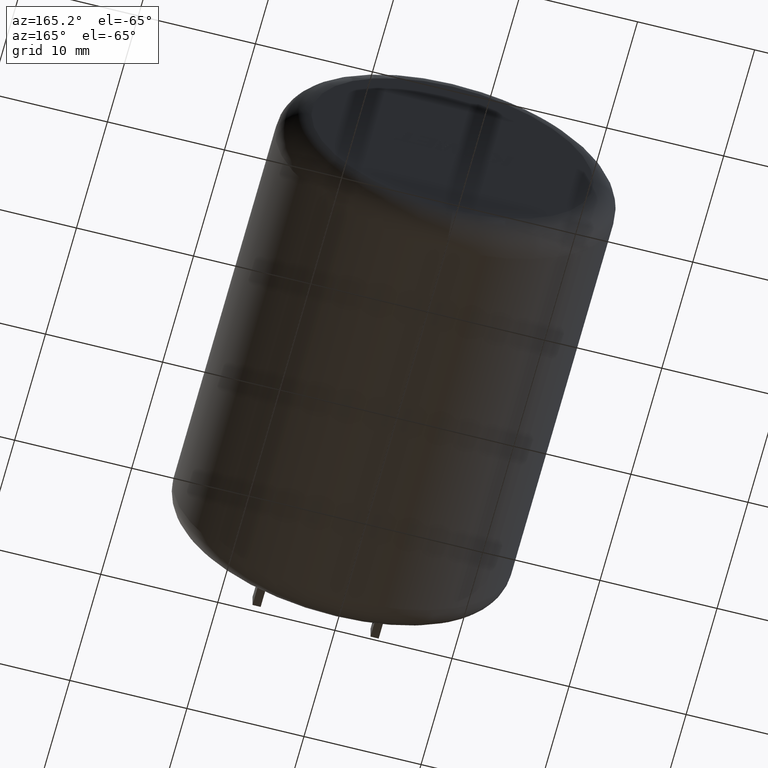
[diagram: clean part render]
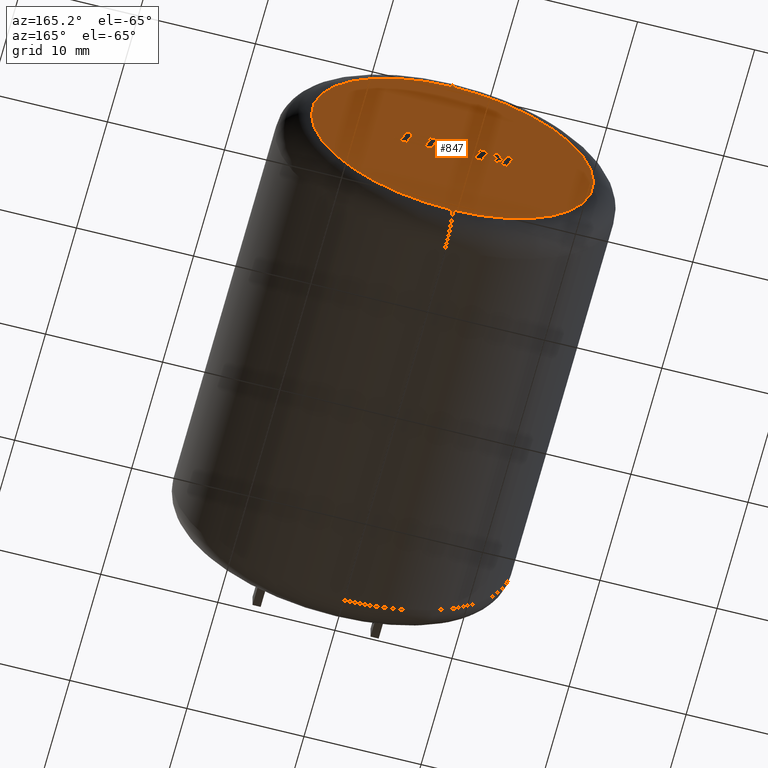
[diagram: same view with one face highlighted and labeled with its STEP entity id]
A machine part, auxiliary view. The second image highlights one B-rep face of the part: STEP entity #847.
In plain terms, the highlighted planar face has unit normal (0, 1, 0).
Its self-contained STEP definition (entity closure, byte-faithful):
#6 = EDGE_CURVE ( 'NONE', #2717, #40, #2582, .T. ) ;
#7 = VERTEX_POINT ( 'NONE', #1355 ) ;
#9 = CARTESIAN_POINT ( 'NONE',  ( 0.9844525863630282400, 38.00000000000000000, 1.053028994543904600 ) ) ;
#12 = FACE_OUTER_BOUND ( 'NONE', #566, .T. ) ;
#18 = CARTESIAN_POINT ( 'NONE',  ( -0.8156049229187412000, 38.00000000000000000, -0.9631222229663523000 ) ) ;
#22 = CARTESIAN_POINT ( 'NONE',  ( -2.823838918333584600, 38.00000000000000000, -0.9631222229663523000 ) ) ;
#40 = VERTEX_POINT ( 'NONE', #1281 ) ;
#41 = LINE ( 'NONE', #2018, #2085 ) ;
#43 = VECTOR ( 'NONE', #627, 1000.000000000000000 ) ;
#44 = DIRECTION ( 'NONE',  ( -0.7059037656364859400, -0.0000000000000000000, 0.7083077534943613700 ) ) ;
#69 = DIRECTION ( 'NONE',  ( -1.000000000000000000, 0.0000000000000000000, 1.455827704943586500E-016 ) ) ;
#74 = ORIENTED_EDGE ( 'NONE', *, *, #1971, .F. ) ;
#78 = EDGE_CURVE ( 'NONE', #1224, #7, #1349, .T. ) ;
#89 = VERTEX_POINT ( 'NONE', #838 ) ;
#99 = CARTESIAN_POINT ( 'NONE',  ( -3.086335984546776600, 38.00000000000000000, 1.053028994543905700 ) ) ;
#109 = LINE ( 'NONE', #2426, #2393 ) ;
#114 = ORIENTED_EDGE ( 'NONE', *, *, #655, .T. ) ;
#115 = VERTEX_POINT ( 'NONE', #1090 ) ;
#123 = DIRECTION ( 'NONE',  ( 0.2729786930695173900, 0.0000000000000000000, -0.9620200793798735500 ) ) ;
#135 = CARTESIAN_POINT ( 'NONE',  ( -0.3989456066037058200, 38.00000000000000000, -0.7418974402618798700 ) ) ;
#137 = DIRECTION ( 'NONE',  ( 1.000000000000000000, -0.0000000000000000000, 1.096870650732911000E-013 ) ) ;
#142 = VECTOR ( 'NONE', #1192, 1000.000000000000000 ) ;
#153 = CARTESIAN_POINT ( 'NONE',  ( 4.931683720037595400, 38.00000000000000000, -0.5737970821254480000 ) ) ;
#164 = CARTESIAN_POINT ( 'NONE',  ( -4.677904531710408900, 38.00000000000000000, 1.053028994543905300 ) ) ;
#198 = DIRECTION ( 'NONE',  ( -0.05596501978067570900, 0.0000000000000000000, 0.9984327301130249100 ) ) ;
#204 = DIRECTION ( 'NONE',  ( 0.0000000000000000000, 1.000000000000000000, 0.0000000000000000000 ) ) ;
#205 = VECTOR ( 'NONE', #929, 999.9999999999998900 ) ;
#210 = DIRECTION ( 'NONE',  ( 0.2740217765954067200, 0.0000000000000000000, -0.9617234872620595800 ) ) ;
#215 = EDGE_CURVE ( 'NONE', #1066, #1154, #2363, .T. ) ;
#226 = CARTESIAN_POINT ( 'NONE',  ( 2.859214151411832100, 38.00000000000000000, 0.6693814386009964100 ) ) ;
#228 = CARTESIAN_POINT ( 'NONE',  ( 1.564110927417840000, 38.00000000000000000, -0.9631222229663527500 ) ) ;
#238 = VERTEX_POINT ( 'NONE', #2161 ) ;
#241 = VECTOR ( 'NONE', #698, 1000.000000000000000 ) ;
#242 = CARTESIAN_POINT ( 'NONE',  ( -1.125700924485933100, 38.00000000000000000, -0.5793581909814401500 ) ) ;
#246 = EDGE_CURVE ( 'NONE', #1429, #2136, #908, .T. ) ;
#248 = LINE ( 'NONE', #1447, #749 ) ;
#249 = VECTOR ( 'NONE', #2116, 1000.000000000000100 ) ;
#273 = CARTESIAN_POINT ( 'NONE',  ( 3.912071732558238600, 38.00000000000000000, 1.053028994543904000 ) ) ;
#275 = CARTESIAN_POINT ( 'NONE',  ( 0.9900434363040663300, 38.00000000000000000, -0.7505411885221796600 ) ) ;
#283 = ORIENTED_EDGE ( 'NONE', *, *, #710, .F. ) ;
#290 = VERTEX_POINT ( 'NONE', #9 ) ;
#291 = LINE ( 'NONE', #1238, #2020 ) ;
#292 = EDGE_CURVE ( 'NONE', #1052, #611, #654, .T. ) ;
#302 = VERTEX_POINT ( 'NONE', #880 ) ;
#305 = VERTEX_POINT ( 'NONE', #228 ) ;
#333 = ORIENTED_EDGE ( 'NONE', *, *, #2303, .F. ) ;
#351 = CARTESIAN_POINT ( 'NONE',  ( -0.03453285888950724500, 38.00000000000000000, 0.4772421111879622800 ) ) ;
#357 = EDGE_CURVE ( 'NONE', #909, #1052, #1271, .T. ) ;
#360 = CARTESIAN_POINT ( 'NONE',  ( -0.8156049229187412000, 38.00000000000000000, -0.9631222229663523000 ) ) ;
#363 = EDGE_LOOP ( 'NONE', ( #969, #873, #1779, #2181, #882, #1700, #693, #1787, #2358, #1908, #1328, #2096, #2616, #1886, #1265, #2760, #1308, #74, #1714, #2482, #679, #2531, #1958 ) ) ;
#365 = DIRECTION ( 'NONE',  ( 0.3725077383644269700, -0.0000000000000000000, 0.9280290862136917300 ) ) ;
#369 = VERTEX_POINT ( 'NONE', #469 ) ;
#372 = EDGE_CURVE ( 'NONE', #933, #2472, #1267, .T. ) ;
#396 = EDGE_CURVE ( 'NONE', #7, #2673, #871, .T. ) ;
#412 = LINE ( 'NONE', #515, #1612 ) ;
#413 = CARTESIAN_POINT ( 'NONE',  ( 2.053187690916773900, 38.00000000000000000, 0.1683628157980141300 ) ) ;
#426 = EDGE_CURVE ( 'NONE', #534, #1007, #1713, .T. ) ;
#427 = DIRECTION ( 'NONE',  ( 0.0000000000000000000, 0.0000000000000000000, 1.000000000000000000 ) ) ;
#429 = LINE ( 'NONE', #135, #1079 ) ;
#437 = CARTESIAN_POINT ( 'NONE',  ( 0.04300255174971300700, 38.00000000000000000, -0.9631222229663527500 ) ) ;
#444 = ORIENTED_EDGE ( 'NONE', *, *, #2693, .F. ) ;
#446 = VECTOR ( 'NONE', #1956, 999.9999999999998900 ) ;
#447 = CARTESIAN_POINT ( 'NONE',  ( -1.284868498917413500, 38.00000000000000000, 0.6694550024109757700 ) ) ;
#452 = CARTESIAN_POINT ( 'NONE',  ( 1.227090569557494300, 38.00000000000000000, 1.053028994543904900 ) ) ;
#454 = LINE ( 'NONE', #1371, #2696 ) ;
#460 = CARTESIAN_POINT ( 'NONE',  ( 0.03793149982259607500, 38.00000000000000000, 1.053028994543905100 ) ) ;
#469 = CARTESIAN_POINT ( 'NONE',  ( 0.03793149982259607500, 38.00000000000000000, 1.053028994543905100 ) ) ;
#476 = EDGE_CURVE ( 'NONE', #2038, #2066, #2073, .T. ) ;
#480 = EDGE_CURVE ( 'NONE', #2673, #1429, #996, .T. ) ;
#497 = EDGE_CURVE ( 'NONE', #2612, #994, #1545, .T. ) ;
#498 = DIRECTION ( 'NONE',  ( -0.2762033010252001900, -0.0000000000000000000, 0.9610992334315862100 ) ) ;
#505 = EDGE_CURVE ( 'NONE', #611, #2400, #2565, .T. ) ;
#508 = EDGE_CURVE ( 'NONE', #994, #974, #2277, .T. ) ;
#515 = CARTESIAN_POINT ( 'NONE',  ( 0.9844525863630282400, 38.00000000000000000, 1.053028994543904600 ) ) ;
#529 = VECTOR ( 'NONE', #2134, 1000.000000000000000 ) ;
#534 = VERTEX_POINT ( 'NONE', #759 ) ;
#541 = CARTESIAN_POINT ( 'NONE',  ( -0.03453285888950724500, 38.00000000000000000, 0.4772421111879622800 ) ) ;
#548 = ORIENTED_EDGE ( 'NONE', *, *, #1318, .F. ) ;
#553 = VECTOR ( 'NONE', #1252, 1000.000000000000000 ) ;
#558 = LINE ( 'NONE', #779, #1106 ) ;
#566 = EDGE_LOOP ( 'NONE', ( #114, #1458 ) ) ;
#568 = AXIS2_PLACEMENT_3D ( 'NONE', #2285, #2530, #1043 ) ;
#572 = CARTESIAN_POINT ( 'NONE',  ( -4.671798733445354100, 38.00000000000000000, -0.9631222229663523000 ) ) ;
#576 = VECTOR ( 'NONE', #895, 1000.000000000000000 ) ;
#582 = EDGE_CURVE ( 'NONE', #1556, #238, #1293, .T. ) ;
#583 = DIRECTION ( 'NONE',  ( 0.05375259206908298400, 0.0000000000000000000, -0.9985542843760947300 ) ) ;
#584 = ORIENTED_EDGE ( 'NONE', *, *, #215, .F. ) ;
#587 = ORIENTED_EDGE ( 'NONE', *, *, #971, .F. ) ;
#594 = CARTESIAN_POINT ( 'NONE',  ( 2.159524185522648100, 38.00000000000000000, -0.2042869498019199100 ) ) ;
#597 = DIRECTION ( 'NONE',  ( -1.000000000000000000, 0.0000000000000000000, 1.448785531673512200E-016 ) ) ;
#606 = CARTESIAN_POINT ( 'NONE',  ( 3.303711244630005400, 38.00000000000000000, -0.9631222229663528600 ) ) ;
#611 = VERTEX_POINT ( 'NONE', #447 ) ;
#614 = VECTOR ( 'NONE', #1503, 1000.000000000000000 ) ;
#616 = DIRECTION ( 'NONE',  ( 0.9999999968487352000, 0.0000000000000000000, 7.938847109754407800E-005 ) ) ;
#625 = VECTOR ( 'NONE', #2172, 1000.000000000000000 ) ;
#627 = DIRECTION ( 'NONE',  ( 1.000000000000000000, 0.0000000000000000000, -2.506541263247940100E-016 ) ) ;
#632 = CIRCLE ( 'NONE', #891, 12.04900000000000100 ) ;
#635 = CARTESIAN_POINT ( 'NONE',  ( -1.016703871901081000, 38.00000000000000000, -0.9631222229663523000 ) ) ;
#641 = DIRECTION ( 'NONE',  ( -1.000000000000000000, 0.0000000000000000000, 0.0000000000000000000 ) ) ;
#642 = CARTESIAN_POINT ( 'NONE',  ( 0.0000000000000000000, 38.00000000000000000, 0.0000000000000000000 ) ) ;
#643 = VERTEX_POINT ( 'NONE', #1443 ) ;
#645 = ORIENTED_EDGE ( 'NONE', *, *, #1872, .F. ) ;
#648 = CIRCLE ( 'NONE', #2614, 12.04900000000000100 ) ;
#654 = LINE ( 'NONE', #18, #249 ) ;
#655 = EDGE_CURVE ( 'NONE', #2039, #115, #648, .T. ) ;
#668 = DIRECTION ( 'NONE',  ( -1.000000000000000000, 0.0000000000000000000, 5.050979426444720200E-016 ) ) ;
#675 = DIRECTION ( 'NONE',  ( 0.2755520632520542200, -0.0000000000000000000, -0.9612861490927329100 ) ) ;
#679 = ORIENTED_EDGE ( 'NONE', *, *, #357, .F. ) ;
#693 = ORIENTED_EDGE ( 'NONE', *, *, #2672, .F. ) ;
#695 = VECTOR ( 'NONE', #137, 1000.000000000000000 ) ;
#698 = DIRECTION ( 'NONE',  ( -1.000000000000000000, 0.0000000000000000000, 0.0000000000000000000 ) ) ;
#703 = CARTESIAN_POINT ( 'NONE',  ( -3.765038890539953000, 38.00000000000000000, -0.04168639734653927600 ) ) ;
#710 = EDGE_CURVE ( 'NONE', #238, #2717, #2003, .T. ) ;
#722 = VECTOR ( 'NONE', #843, 1000.000000000000000 ) ;
#744 = ORIENTED_EDGE ( 'NONE', *, *, #2676, .F. ) ;
#748 = DIRECTION ( 'NONE',  ( 1.000000000000000000, 0.0000000000000000000, 0.0000000000000000000 ) ) ;
#749 = VECTOR ( 'NONE', #808, 1000.000000000000100 ) ;
#759 = CARTESIAN_POINT ( 'NONE',  ( -4.671798733445354100, 38.00000000000000000, -0.9631222229663523000 ) ) ;
#767 = ORIENTED_EDGE ( 'NONE', *, *, #1054, .F. ) ;
#768 = VERTEX_POINT ( 'NONE', #2475 ) ;
#779 = CARTESIAN_POINT ( 'NONE',  ( -0.4995563842746180700, 38.00000000000000000, 1.053028994543905300 ) ) ;
#781 = LINE ( 'NONE', #2497, #2769 ) ;
#789 = VECTOR ( 'NONE', #2331, 1000.000000000000100 ) ;
#805 = LINE ( 'NONE', #864, #2249 ) ;
#808 = DIRECTION ( 'NONE',  ( 0.2755265765475025100, -0.0000000000000000000, -0.9612934544747577800 ) ) ;
#817 = VECTOR ( 'NONE', #641, 1000.000000000000000 ) ;
#827 = CARTESIAN_POINT ( 'NONE',  ( -0.3989456066037058200, 38.00000000000000000, -0.7418974402618798700 ) ) ;
#836 = ORIENTED_EDGE ( 'NONE', *, *, #2685, .F. ) ;
#838 = CARTESIAN_POINT ( 'NONE',  ( 2.918285894870225900, 38.00000000000000000, 0.1683628157980139000 ) ) ;
#843 = DIRECTION ( 'NONE',  ( 0.7145695586382339000, -0.0000000000000000000, -0.6995643972269883800 ) ) ;
#844 = ORIENTED_EDGE ( 'NONE', *, *, #2138, .F. ) ;
#847 = ADVANCED_FACE ( 'NONE', ( #1247, #1723, #1144, #12 ), #1018, .T. ) ;
#849 = LINE ( 'NONE', #1881, #817 ) ;
#855 = LINE ( 'NONE', #2712, #1970 ) ;
#858 = CARTESIAN_POINT ( 'NONE',  ( 4.379680122707077800, 38.00000000000000000, -0.5738409048472185000 ) ) ;
#864 = CARTESIAN_POINT ( 'NONE',  ( -4.097731242331414100, 38.00000000000000000, -0.9631222229663523000 ) ) ;
#871 = LINE ( 'NONE', #2373, #241 ) ;
#873 = ORIENTED_EDGE ( 'NONE', *, *, #2095, .F. ) ;
#878 = EDGE_CURVE ( 'NONE', #115, #2039, #632, .T. ) ;
#880 = CARTESIAN_POINT ( 'NONE',  ( 3.024744995834479400, 38.00000000000000000, -0.2042869498019201400 ) ) ;
#882 = ORIENTED_EDGE ( 'NONE', *, *, #2110, .F. ) ;
#887 = VECTOR ( 'NONE', #1437, 1000.000000000000000 ) ;
#891 = AXIS2_PLACEMENT_3D ( 'NONE', #642, #204, #427 ) ;
#895 = DIRECTION ( 'NONE',  ( -0.2765379750249959400, 0.0000000000000000000, 0.9610029908221278100 ) ) ;
#905 = DIRECTION ( 'NONE',  ( -1.000000000000000000, 0.0000000000000000000, 0.0000000000000000000 ) ) ;
#908 = LINE ( 'NONE', #1540, #1957 ) ;
#909 = VERTEX_POINT ( 'NONE', #2648 ) ;
#910 = LINE ( 'NONE', #2753, #2251 ) ;
#922 = CARTESIAN_POINT ( 'NONE',  ( -0.9143214339711456300, 38.00000000000000000, 1.053028994543905300 ) ) ;
#929 = DIRECTION ( 'NONE',  ( 0.2732148821745903900, 0.0000000000000000000, -0.9619530280415592400 ) ) ;
#933 = VERTEX_POINT ( 'NONE', #1585 ) ;
#934 = CARTESIAN_POINT ( 'NONE',  ( -2.044280021955986900, 38.00000000000000000, -0.5793581909814401500 ) ) ;
#937 = VECTOR ( 'NONE', #668, 1000.000000000000000 ) ;
#958 = CARTESIAN_POINT ( 'NONE',  ( -4.344182283275985800, 38.00000000000000000, -0.1033573956103139300 ) ) ;
#959 = DIRECTION ( 'NONE',  ( 0.0000000000000000000, 0.0000000000000000000, 1.000000000000000000 ) ) ;
#961 = VECTOR ( 'NONE', #2520, 1000.000000000000100 ) ;
#969 = ORIENTED_EDGE ( 'NONE', *, *, #1215, .F. ) ;
#971 = EDGE_CURVE ( 'NONE', #302, #989, #109, .T. ) ;
#974 = VERTEX_POINT ( 'NONE', #922 ) ;
#976 = LINE ( 'NONE', #351, #2741 ) ;
#978 = LINE ( 'NONE', #1505, #1843 ) ;
#989 = VERTEX_POINT ( 'NONE', #1127 ) ;
#994 = VERTEX_POINT ( 'NONE', #99 ) ;
#996 = LINE ( 'NONE', #1771, #446 ) ;
#998 = LINE ( 'NONE', #1679, #722 ) ;
#1001 = CARTESIAN_POINT ( 'NONE',  ( 0.6798407158200339100, 38.00000000000000000, -0.9631222229663525300 ) ) ;
#1002 = CARTESIAN_POINT ( 'NONE',  ( 3.337746768091752500, 38.00000000000000000, 1.053028994543904200 ) ) ;
#1007 = VERTEX_POINT ( 'NONE', #1410 ) ;
#1018 = PLANE ( 'NONE',  #568 ) ;
#1030 = VECTOR ( 'NONE', #2567, 1000.000000000000200 ) ;
#1035 = CARTESIAN_POINT ( 'NONE',  ( 0.6798407158200340300, 38.00000000000000000, -0.9631222229663527500 ) ) ;
#1037 = LINE ( 'NONE', #1470, #625 ) ;
#1043 = DIRECTION ( 'NONE',  ( 0.0000000000000000000, -0.0000000000000000000, 1.000000000000000000 ) ) ;
#1051 = CARTESIAN_POINT ( 'NONE',  ( -3.765038890539953000, 38.00000000000000000, -0.04168639734653927600 ) ) ;
#1052 = VERTEX_POINT ( 'NONE', #360 ) ;
#1053 = CARTESIAN_POINT ( 'NONE',  ( 2.268643844463263300, 38.00000000000000000, -0.5792907574821812800 ) ) ;
#1054 = EDGE_CURVE ( 'NONE', #1162, #534, #2126, .T. ) ;
#1056 = EDGE_CURVE ( 'NONE', #2574, #290, #2461, .T. ) ;
#1066 = VERTEX_POINT ( 'NONE', #1635 ) ;
#1079 = VECTOR ( 'NONE', #198, 1000.000000000000100 ) ;
#1086 = CARTESIAN_POINT ( 'NONE',  ( 2.053187690916773900, 38.00000000000000000, 0.1683628157980141300 ) ) ;
#1090 = CARTESIAN_POINT ( 'NONE',  ( 1.625657393528153900E-015, 38.00000000000000000, -12.04900000000000100 ) ) ;
#1094 = EDGE_CURVE ( 'NONE', #1652, #909, #976, .T. ) ;
#1106 = VECTOR ( 'NONE', #2240, 1000.000000000000000 ) ;
#1111 = CARTESIAN_POINT ( 'NONE',  ( -0.9143214339711456300, 38.00000000000000000, 1.053028994543905300 ) ) ;
#1127 = CARTESIAN_POINT ( 'NONE',  ( 2.159524185522648100, 38.00000000000000000, -0.2042869498019199100 ) ) ;
#1144 = FACE_BOUND ( 'NONE', #1798, .T. ) ;
#1154 = VERTEX_POINT ( 'NONE', #958 ) ;
#1157 = LINE ( 'NONE', #460, #1030 ) ;
#1162 = VERTEX_POINT ( 'NONE', #2444 ) ;
#1169 = EDGE_CURVE ( 'NONE', #643, #369, #558, .T. ) ;
#1192 = DIRECTION ( 'NONE',  ( 1.000000000000000000, 0.0000000000000000000, -4.232393926185561900E-016 ) ) ;
#1203 = CARTESIAN_POINT ( 'NONE',  ( -4.364136469712908800, 38.00000000000000000, -0.04168639734652045800 ) ) ;
#1213 = CARTESIAN_POINT ( 'NONE',  ( 4.931683720037595400, 38.00000000000000000, -0.5737970821254480000 ) ) ;
#1215 = EDGE_CURVE ( 'NONE', #305, #1859, #849, .T. ) ;
#1217 = CARTESIAN_POINT ( 'NONE',  ( -1.394503104559656100, 38.00000000000000000, 0.1683628157939400200 ) ) ;
#1224 = VERTEX_POINT ( 'NONE', #1217 ) ;
#1231 = CARTESIAN_POINT ( 'NONE',  ( -1.125700924485933100, 38.00000000000000000, -0.5793581909814401500 ) ) ;
#1238 = CARTESIAN_POINT ( 'NONE',  ( -3.311272758248907000, 38.00000000000000000, 1.053028994543904900 ) ) ;
#1246 = CARTESIAN_POINT ( 'NONE',  ( 3.192556318522602200, 38.00000000000000000, -0.5766915026842742700 ) ) ;
#1247 = FACE_BOUND ( 'NONE', #2491, .T. ) ;
#1252 = DIRECTION ( 'NONE',  ( -1.000000000000000000, -0.0000000000000000000, -0.0000000000000000000 ) ) ;
#1254 = CARTESIAN_POINT ( 'NONE',  ( -1.394503104559656100, 38.00000000000000000, 0.1683628157939400200 ) ) ;
#1255 = ORIENTED_EDGE ( 'NONE', *, *, #2352, .F. ) ;
#1265 = ORIENTED_EDGE ( 'NONE', *, *, #396, .F. ) ;
#1267 = LINE ( 'NONE', #1051, #1640 ) ;
#1271 = LINE ( 'NONE', #437, #937 ) ;
#1281 = CARTESIAN_POINT ( 'NONE',  ( 1.227090569557494300, 38.00000000000000000, 1.053028994543904900 ) ) ;
#1293 = LINE ( 'NONE', #153, #1358 ) ;
#1308 = ORIENTED_EDGE ( 'NONE', *, *, #1354, .F. ) ;
#1316 = CARTESIAN_POINT ( 'NONE',  ( -4.344182283275985800, 38.00000000000000000, -0.1033573956103139300 ) ) ;
#1318 = EDGE_CURVE ( 'NONE', #2169, #1066, #2390, .T. ) ;
#1319 = DIRECTION ( 'NONE',  ( 0.2746918797667231600, 0.0000000000000000000, -0.9615323037684299100 ) ) ;
#1326 = EDGE_CURVE ( 'NONE', #1834, #1556, #1347, .T. ) ;
#1328 = ORIENTED_EDGE ( 'NONE', *, *, #1687, .F. ) ;
#1331 = DIRECTION ( 'NONE',  ( 0.9999960426590096500, 0.0000000000000000000, 0.002813301676022722900 ) ) ;
#1342 = VERTEX_POINT ( 'NONE', #827 ) ;
#1347 = LINE ( 'NONE', #1474, #2663 ) ;
#1349 = LINE ( 'NONE', #1254, #789 ) ;
#1354 = EDGE_CURVE ( 'NONE', #1863, #1224, #2536, .T. ) ;
#1355 = CARTESIAN_POINT ( 'NONE',  ( -1.288044003593056700, 38.00000000000000000, -0.2043543833022431500 ) ) ;
#1358 = VECTOR ( 'NONE', #1424, 1000.000000000000100 ) ;
#1365 = EDGE_CURVE ( 'NONE', #2345, #933, #291, .T. ) ;
#1371 = CARTESIAN_POINT ( 'NONE',  ( -1.016703871901081000, 38.00000000000000000, -0.9631222229663523000 ) ) ;
#1373 = EDGE_CURVE ( 'NONE', #2732, #89, #2053, .T. ) ;
#1374 = CARTESIAN_POINT ( 'NONE',  ( 3.805490025235814100, 38.00000000000000000, -0.5738409048522489200 ) ) ;
#1401 = ORIENTED_EDGE ( 'NONE', *, *, #476, .F. ) ;
#1402 = LINE ( 'NONE', #1426, #1552 ) ;
#1410 = CARTESIAN_POINT ( 'NONE',  ( -5.251205731465742800, 38.00000000000000000, 1.053028994543842500 ) ) ;
#1411 = EDGE_CURVE ( 'NONE', #2389, #1834, #1037, .T. ) ;
#1413 = VECTOR ( 'NONE', #1428, 1000.000000000000000 ) ;
#1421 = EDGE_CURVE ( 'NONE', #2637, #2345, #41, .T. ) ;
#1424 = DIRECTION ( 'NONE',  ( 0.2762033010288755300, 0.0000000000000000000, -0.9610992334305299400 ) ) ;
#1425 = VERTEX_POINT ( 'NONE', #275 ) ;
#1426 = CARTESIAN_POINT ( 'NONE',  ( 2.750351965824065400, 38.00000000000000000, 1.053028994543904400 ) ) ;
#1428 = DIRECTION ( 'NONE',  ( -1.000000000000000000, -0.0000000000000000000, -0.0000000000000000000 ) ) ;
#1429 = VERTEX_POINT ( 'NONE', #934 ) ;
#1436 = CARTESIAN_POINT ( 'NONE',  ( 0.4721173966834419400, 38.00000000000000000, 1.053028994543904900 ) ) ;
#1437 = DIRECTION ( 'NONE',  ( 1.000000000000000000, 0.0000000000000000000, 0.0000000000000000000 ) ) ;
#1443 = CARTESIAN_POINT ( 'NONE',  ( -0.4995563842746180700, 38.00000000000000000, 1.053028994543905300 ) ) ;
#1447 = CARTESIAN_POINT ( 'NONE',  ( -4.364136469712908800, 38.00000000000000000, -0.04168639734652045800 ) ) ;
#1450 = DIRECTION ( 'NONE',  ( -0.2760118818968560500, 0.0000000000000000000, 0.9611542233438689100 ) ) ;
#1456 = CARTESIAN_POINT ( 'NONE',  ( 3.805490025235814100, 38.00000000000000000, -0.5738409048522489200 ) ) ;
#1457 = CARTESIAN_POINT ( 'NONE',  ( -3.924721411668132800, 38.00000000000000000, 1.053028994543904900 ) ) ;
#1458 = ORIENTED_EDGE ( 'NONE', *, *, #878, .T. ) ;
#1470 = CARTESIAN_POINT ( 'NONE',  ( 3.912071732558238600, 38.00000000000000000, 1.053028994543904000 ) ) ;
#1473 = VERTEX_POINT ( 'NONE', #2234 ) ;
#1474 = CARTESIAN_POINT ( 'NONE',  ( 4.379680122707077800, 38.00000000000000000, -0.5738409048472185000 ) ) ;
#1483 = VECTOR ( 'NONE', #2301, 1000.000000000000000 ) ;
#1484 = DIRECTION ( 'NONE',  ( 1.000000000000000000, -0.0000000000000000000, -0.0000000000000000000 ) ) ;
#1498 = ORIENTED_EDGE ( 'NONE', *, *, #1835, .F. ) ;
#1499 = CARTESIAN_POINT ( 'NONE',  ( 0.0000000000000000000, 38.00000000000000000, 12.04900000000000100 ) ) ;
#1503 = DIRECTION ( 'NONE',  ( 1.000000000000000000, 0.0000000000000000000, 0.0000000000000000000 ) ) ;
#1505 = CARTESIAN_POINT ( 'NONE',  ( 1.910155113253702200, 38.00000000000000000, 0.6693814386009966400 ) ) ;
#1520 = LINE ( 'NONE', #164, #695 ) ;
#1540 = CARTESIAN_POINT ( 'NONE',  ( -2.044280021955986900, 38.00000000000000000, -0.5793581909814401500 ) ) ;
#1545 = LINE ( 'NONE', #1573, #576 ) ;
#1548 = LINE ( 'NONE', #1035, #961 ) ;
#1552 = VECTOR ( 'NONE', #123, 1000.000000000000000 ) ;
#1556 = VERTEX_POINT ( 'NONE', #1213 ) ;
#1567 = ORIENTED_EDGE ( 'NONE', *, *, #426, .F. ) ;
#1573 = CARTESIAN_POINT ( 'NONE',  ( -2.506168825485704900, 38.00000000000000000, -0.9631222229663520800 ) ) ;
#1580 = EDGE_CURVE ( 'NONE', #2002, #2389, #1860, .T. ) ;
#1585 = CARTESIAN_POINT ( 'NONE',  ( -3.311272758248907000, 38.00000000000000000, 1.053028994543904900 ) ) ;
#1601 = DIRECTION ( 'NONE',  ( -1.000000000000000000, 0.0000000000000000000, 2.506186073112944800E-016 ) ) ;
#1612 = VECTOR ( 'NONE', #1911, 1000.000000000000000 ) ;
#1617 = DIRECTION ( 'NONE',  ( 0.2793947940814914300, 0.0000000000000000000, -0.9601763114346035800 ) ) ;
#1620 = ORIENTED_EDGE ( 'NONE', *, *, #2192, .F. ) ;
#1629 = CARTESIAN_POINT ( 'NONE',  ( 0.4721173966834419400, 38.00000000000000000, 1.053028994543904900 ) ) ;
#1635 = CARTESIAN_POINT ( 'NONE',  ( -3.487335487235283500, 38.00000000000000000, -0.9631222229663523000 ) ) ;
#1640 = VECTOR ( 'NONE', #2340, 1000.000000000000100 ) ;
#1652 = VERTEX_POINT ( 'NONE', #541 ) ;
#1679 = CARTESIAN_POINT ( 'NONE',  ( -2.823838918333584600, 38.00000000000000000, -0.9631222229663523000 ) ) ;
#1686 = VECTOR ( 'NONE', #1852, 1000.000000000000200 ) ;
#1687 = EDGE_CURVE ( 'NONE', #2283, #2612, #454, .T. ) ;
#1700 = ORIENTED_EDGE ( 'NONE', *, *, #1169, .F. ) ;
#1701 = CARTESIAN_POINT ( 'NONE',  ( 3.337746768091752500, 38.00000000000000000, 1.053028994543904200 ) ) ;
#1706 = VERTEX_POINT ( 'NONE', #1997 ) ;
#1710 = VECTOR ( 'NONE', #1331, 999.9999999999998900 ) ;
#1713 = LINE ( 'NONE', #2149, #2766 ) ;
#1714 = ORIENTED_EDGE ( 'NONE', *, *, #505, .F. ) ;
#1722 = CARTESIAN_POINT ( 'NONE',  ( 1.807006385584198200, 38.00000000000000000, -0.9631222229663527500 ) ) ;
#1723 = FACE_BOUND ( 'NONE', #363, .T. ) ;
#1729 = DIRECTION ( 'NONE',  ( 0.2745159998572669300, 0.0000000000000000000, -0.9615825319869143500 ) ) ;
#1739 = LINE ( 'NONE', #1374, #1985 ) ;
#1745 = CARTESIAN_POINT ( 'NONE',  ( -2.402511279821104600, 38.00000000000000000, 0.6694550024109757700 ) ) ;
#1771 = CARTESIAN_POINT ( 'NONE',  ( -2.153399680898977000, 38.00000000000000000, -0.2043543833022431500 ) ) ;
#1779 = ORIENTED_EDGE ( 'NONE', *, *, #1056, .F. ) ;
#1787 = ORIENTED_EDGE ( 'NONE', *, *, #2382, .F. ) ;
#1790 = EDGE_CURVE ( 'NONE', #1425, #2574, #781, .T. ) ;
#1798 = EDGE_LOOP ( 'NONE', ( #1567, #767, #844, #584, #548, #645, #2511, #2209, #1854, #333, #2385 ) ) ;
#1799 = LINE ( 'NONE', #1231, #205 ) ;
#1800 = EDGE_CURVE ( 'NONE', #1007, #1473, #1520, .T. ) ;
#1808 = VECTOR ( 'NONE', #44, 1000.000000000000100 ) ;
#1812 = VECTOR ( 'NONE', #2199, 1000.000000000000000 ) ;
#1818 = CARTESIAN_POINT ( 'NONE',  ( -1.273190244891335900, 38.00000000000000000, 1.053028994543905300 ) ) ;
#1824 = ORIENTED_EDGE ( 'NONE', *, *, #582, .F. ) ;
#1834 = VERTEX_POINT ( 'NONE', #858 ) ;
#1835 = EDGE_CURVE ( 'NONE', #1706, #768, #1402, .T. ) ;
#1837 = ORIENTED_EDGE ( 'NONE', *, *, #1945, .F. ) ;
#1843 = VECTOR ( 'NONE', #1729, 999.9999999999998900 ) ;
#1852 = DIRECTION ( 'NONE',  ( 0.9999891854650020400, 0.0000000000000000000, 0.004650693823678137000 ) ) ;
#1854 = ORIENTED_EDGE ( 'NONE', *, *, #1421, .F. ) ;
#1859 = VERTEX_POINT ( 'NONE', #1001 ) ;
#1860 = LINE ( 'NONE', #1002, #1483 ) ;
#1863 = VERTEX_POINT ( 'NONE', #2480 ) ;
#1871 = CARTESIAN_POINT ( 'NONE',  ( -2.259736175507299100, 38.00000000000000000, 0.1683628157939400200 ) ) ;
#1872 = EDGE_CURVE ( 'NONE', #2472, #2169, #998, .T. ) ;
#1881 = CARTESIAN_POINT ( 'NONE',  ( 1.564110927417840000, 38.00000000000000000, -0.9631222229663527500 ) ) ;
#1886 = ORIENTED_EDGE ( 'NONE', *, *, #480, .F. ) ;
#1908 = ORIENTED_EDGE ( 'NONE', *, *, #497, .F. ) ;
#1911 = DIRECTION ( 'NONE',  ( 0.2763139702539117400, 0.0000000000000000000, -0.9610674221107072800 ) ) ;
#1945 = EDGE_CURVE ( 'NONE', #2066, #1960, #2215, .T. ) ;
#1956 = DIRECTION ( 'NONE',  ( 0.2793947940878295200, 0.0000000000000000000, -0.9601763114327595000 ) ) ;
#1957 = VECTOR ( 'NONE', #748, 1000.000000000000000 ) ;
#1958 = ORIENTED_EDGE ( 'NONE', *, *, #2061, .F. ) ;
#1960 = VERTEX_POINT ( 'NONE', #1456 ) ;
#1970 = VECTOR ( 'NONE', #1319, 1000.000000000000000 ) ;
#1971 = EDGE_CURVE ( 'NONE', #2400, #1863, #910, .T. ) ;
#1976 = EDGE_CURVE ( 'NONE', #989, #2038, #2729, .T. ) ;
#1977 = CARTESIAN_POINT ( 'NONE',  ( -1.284868498917413500, 38.00000000000000000, 0.6694550024109757700 ) ) ;
#1985 = VECTOR ( 'NONE', #2587, 1000.000000000000200 ) ;
#1997 = CARTESIAN_POINT ( 'NONE',  ( 2.750351965824065400, 38.00000000000000000, 1.053028994543904400 ) ) ;
#2002 = VERTEX_POINT ( 'NONE', #1701 ) ;
#2003 = LINE ( 'NONE', #606, #2205 ) ;
#2007 = VERTEX_POINT ( 'NONE', #2510 ) ;
#2018 = CARTESIAN_POINT ( 'NONE',  ( -3.924721411668132800, 38.00000000000000000, 1.053028994543904900 ) ) ;
#2020 = VECTOR ( 'NONE', #1484, 1000.000000000000000 ) ;
#2037 = CARTESIAN_POINT ( 'NONE',  ( -2.506168825485704900, 38.00000000000000000, -0.9631222229663520800 ) ) ;
#2038 = VERTEX_POINT ( 'NONE', #1053 ) ;
#2039 = VERTEX_POINT ( 'NONE', #1499 ) ;
#2053 = LINE ( 'NONE', #413, #43 ) ;
#2061 = EDGE_CURVE ( 'NONE', #1859, #1652, #1548, .T. ) ;
#2066 = VERTEX_POINT ( 'NONE', #2718 ) ;
#2071 = CARTESIAN_POINT ( 'NONE',  ( -2.153399680898977000, 38.00000000000000000, -0.2043543833022431500 ) ) ;
#2073 = LINE ( 'NONE', #2617, #1710 ) ;
#2075 = EDGE_CURVE ( 'NONE', #2136, #2283, #1799, .T. ) ;
#2079 = ORIENTED_EDGE ( 'NONE', *, *, #1326, .F. ) ;
#2080 = VECTOR ( 'NONE', #1617, 1000.000000000000100 ) ;
#2085 = VECTOR ( 'NONE', #365, 1000.000000000000000 ) ;
#2095 = EDGE_CURVE ( 'NONE', #290, #305, #412, .T. ) ;
#2096 = ORIENTED_EDGE ( 'NONE', *, *, #2075, .F. ) ;
#2110 = EDGE_CURVE ( 'NONE', #369, #1425, #1157, .T. ) ;
#2116 = DIRECTION ( 'NONE',  ( -0.2762517575166151300, 0.0000000000000000000, 0.9610853065513910200 ) ) ;
#2126 = LINE ( 'NONE', #572, #1413 ) ;
#2131 = VECTOR ( 'NONE', #2602, 1000.000000000000200 ) ;
#2134 = DIRECTION ( 'NONE',  ( 1.000000000000000000, 0.0000000000000000000, -2.847054813160298500E-016 ) ) ;
#2136 = VERTEX_POINT ( 'NONE', #242 ) ;
#2138 = EDGE_CURVE ( 'NONE', #1154, #1162, #805, .T. ) ;
#2149 = CARTESIAN_POINT ( 'NONE',  ( -5.251205731465742800, 38.00000000000000000, 1.053028994543842500 ) ) ;
#2161 = CARTESIAN_POINT ( 'NONE',  ( 5.043569033575890300, 38.00000000000000000, -0.9631222229663530800 ) ) ;
#2169 = VERTEX_POINT ( 'NONE', #22 ) ;
#2172 = DIRECTION ( 'NONE',  ( 0.2762437428917315400, 0.0000000000000000000, -0.9610876102172824000 ) ) ;
#2181 = ORIENTED_EDGE ( 'NONE', *, *, #1790, .F. ) ;
#2192 = EDGE_CURVE ( 'NONE', #1960, #2002, #1739, .T. ) ;
#2199 = DIRECTION ( 'NONE',  ( -0.2764273280489769100, 0.0000000000000000000, 0.9610348236706635100 ) ) ;
#2200 = ORIENTED_EDGE ( 'NONE', *, *, #1976, .F. ) ;
#2205 = VECTOR ( 'NONE', #597, 1000.000000000000000 ) ;
#2207 = CARTESIAN_POINT ( 'NONE',  ( 1.807006385584198200, 38.00000000000000000, -0.9631222229663527500 ) ) ;
#2209 = ORIENTED_EDGE ( 'NONE', *, *, #1365, .F. ) ;
#2215 = LINE ( 'NONE', #1246, #1686 ) ;
#2219 = CARTESIAN_POINT ( 'NONE',  ( 0.0000000000000000000, 38.00000000000000000, 0.0000000000000000000 ) ) ;
#2234 = CARTESIAN_POINT ( 'NONE',  ( -4.677904531710408900, 38.00000000000000000, 1.053028994543905300 ) ) ;
#2240 = DIRECTION ( 'NONE',  ( 1.000000000000000000, 0.0000000000000000000, -4.034331580539989700E-016 ) ) ;
#2247 = ORIENTED_EDGE ( 'NONE', *, *, #1580, .F. ) ;
#2249 = VECTOR ( 'NONE', #675, 1000.000000000000100 ) ;
#2251 = VECTOR ( 'NONE', #210, 1000.000000000000200 ) ;
#2277 = LINE ( 'NONE', #1818, #614 ) ;
#2283 = VERTEX_POINT ( 'NONE', #635 ) ;
#2285 = CARTESIAN_POINT ( 'NONE',  ( 0.0000000000000000000, 38.00000000000000000, 0.0000000000000000000 ) ) ;
#2292 = CARTESIAN_POINT ( 'NONE',  ( -3.487335487235283500, 38.00000000000000000, -0.9631222229663523000 ) ) ;
#2294 = LINE ( 'NONE', #1111, #2131 ) ;
#2301 = DIRECTION ( 'NONE',  ( 1.000000000000000000, 0.0000000000000000000, -3.775570415932256000E-016 ) ) ;
#2303 = EDGE_CURVE ( 'NONE', #1473, #2637, #248, .T. ) ;
#2331 = DIRECTION ( 'NONE',  ( 0.2746459304916897800, 0.0000000000000000000, -0.9615454294334480100 ) ) ;
#2340 = DIRECTION ( 'NONE',  ( -0.3829140317376766900, -0.0000000000000000000, -0.9237839814038764100 ) ) ;
#2345 = VERTEX_POINT ( 'NONE', #1457 ) ;
#2352 = EDGE_CURVE ( 'NONE', #40, #1706, #2430, .T. ) ;
#2358 = ORIENTED_EDGE ( 'NONE', *, *, #508, .F. ) ;
#2363 = LINE ( 'NONE', #1316, #1808 ) ;
#2373 = CARTESIAN_POINT ( 'NONE',  ( -1.288044003593056700, 38.00000000000000000, -0.2043543833022431500 ) ) ;
#2382 = EDGE_CURVE ( 'NONE', #974, #1342, #2294, .T. ) ;
#2385 = ORIENTED_EDGE ( 'NONE', *, *, #1800, .F. ) ;
#2389 = VERTEX_POINT ( 'NONE', #273 ) ;
#2390 = LINE ( 'NONE', #2292, #553 ) ;
#2393 = VECTOR ( 'NONE', #1601, 1000.000000000000000 ) ;
#2400 = VERTEX_POINT ( 'NONE', #1745 ) ;
#2426 = CARTESIAN_POINT ( 'NONE',  ( 3.024744995834479400, 38.00000000000000000, -0.2042869498019201400 ) ) ;
#2427 = DIRECTION ( 'NONE',  ( 0.0000000000000000000, 1.000000000000000000, 0.0000000000000000000 ) ) ;
#2428 = LINE ( 'NONE', #226, #2630 ) ;
#2430 = LINE ( 'NONE', #452, #529 ) ;
#2444 = CARTESIAN_POINT ( 'NONE',  ( -4.097731242331414100, 38.00000000000000000, -0.9631222229663523000 ) ) ;
#2461 = LINE ( 'NONE', #1629, #142 ) ;
#2472 = VERTEX_POINT ( 'NONE', #703 ) ;
#2475 = CARTESIAN_POINT ( 'NONE',  ( 2.859214151411832100, 38.00000000000000000, 0.6693814386009964100 ) ) ;
#2480 = CARTESIAN_POINT ( 'NONE',  ( -2.259736175507299100, 38.00000000000000000, 0.1683628157939400200 ) ) ;
#2482 = ORIENTED_EDGE ( 'NONE', *, *, #292, .F. ) ;
#2484 = VECTOR ( 'NONE', #905, 1000.000000000000000 ) ;
#2491 = EDGE_LOOP ( 'NONE', ( #1401, #2200, #587, #744, #2641, #836, #444, #1498, #1255, #2719, #283, #1824, #2079, #2756, #2247, #1620, #1837 ) ) ;
#2497 = CARTESIAN_POINT ( 'NONE',  ( 0.9900434363040663300, 38.00000000000000000, -0.7505411885221796600 ) ) ;
#2510 = CARTESIAN_POINT ( 'NONE',  ( 1.910155113253702200, 38.00000000000000000, 0.6693814386009966400 ) ) ;
#2511 = ORIENTED_EDGE ( 'NONE', *, *, #372, .F. ) ;
#2520 = DIRECTION ( 'NONE',  ( -0.4443210308329209000, 0.0000000000000000000, 0.8958676361826954900 ) ) ;
#2530 = DIRECTION ( 'NONE',  ( 0.0000000000000000000, 1.000000000000000000, 0.0000000000000000000 ) ) ;
#2531 = ORIENTED_EDGE ( 'NONE', *, *, #1094, .F. ) ;
#2536 = LINE ( 'NONE', #1871, #887 ) ;
#2548 = DIRECTION ( 'NONE',  ( -1.000000000000000000, 0.0000000000000000000, 2.284793946200968400E-016 ) ) ;
#2565 = LINE ( 'NONE', #1977, #2484 ) ;
#2567 = DIRECTION ( 'NONE',  ( 0.4668459304955212000, 0.0000000000000000000, -0.8843386665637610300 ) ) ;
#2574 = VERTEX_POINT ( 'NONE', #1436 ) ;
#2582 = LINE ( 'NONE', #2207, #1812 ) ;
#2587 = DIRECTION ( 'NONE',  ( -0.2763173343569915700, 0.0000000000000000000, 0.9610664548998921800 ) ) ;
#2602 = DIRECTION ( 'NONE',  ( 0.2759782365590740500, 0.0000000000000000000, -0.9611638845408954100 ) ) ;
#2612 = VERTEX_POINT ( 'NONE', #2037 ) ;
#2614 = AXIS2_PLACEMENT_3D ( 'NONE', #2219, #2427, #959 ) ;
#2616 = ORIENTED_EDGE ( 'NONE', *, *, #246, .F. ) ;
#2617 = CARTESIAN_POINT ( 'NONE',  ( 2.268643844463263300, 38.00000000000000000, -0.5792907574821812800 ) ) ;
#2630 = VECTOR ( 'NONE', #2548, 1000.000000000000000 ) ;
#2637 = VERTEX_POINT ( 'NONE', #1203 ) ;
#2641 = ORIENTED_EDGE ( 'NONE', *, *, #1373, .F. ) ;
#2648 = CARTESIAN_POINT ( 'NONE',  ( 0.04300255174971300700, 38.00000000000000000, -0.9631222229663527500 ) ) ;
#2663 = VECTOR ( 'NONE', #616, 1000.000000000000100 ) ;
#2672 = EDGE_CURVE ( 'NONE', #1342, #643, #429, .T. ) ;
#2673 = VERTEX_POINT ( 'NONE', #2071 ) ;
#2676 = EDGE_CURVE ( 'NONE', #89, #302, #855, .T. ) ;
#2685 = EDGE_CURVE ( 'NONE', #2007, #2732, #978, .T. ) ;
#2693 = EDGE_CURVE ( 'NONE', #768, #2007, #2428, .T. ) ;
#2696 = VECTOR ( 'NONE', #69, 1000.000000000000000 ) ;
#2712 = CARTESIAN_POINT ( 'NONE',  ( 2.918285894870225900, 38.00000000000000000, 0.1683628157980139000 ) ) ;
#2717 = VERTEX_POINT ( 'NONE', #1722 ) ;
#2718 = CARTESIAN_POINT ( 'NONE',  ( 3.192556318522601800, 38.00000000000000000, -0.5766915026842742700 ) ) ;
#2719 = ORIENTED_EDGE ( 'NONE', *, *, #6, .F. ) ;
#2729 = LINE ( 'NONE', #594, #2080 ) ;
#2732 = VERTEX_POINT ( 'NONE', #1086 ) ;
#2741 = VECTOR ( 'NONE', #583, 1000.000000000000100 ) ;
#2753 = CARTESIAN_POINT ( 'NONE',  ( -2.402511279821104600, 38.00000000000000000, 0.6694550024109757700 ) ) ;
#2756 = ORIENTED_EDGE ( 'NONE', *, *, #1411, .F. ) ;
#2760 = ORIENTED_EDGE ( 'NONE', *, *, #78, .F. ) ;
#2766 = VECTOR ( 'NONE', #498, 1000.000000000000100 ) ;
#2769 = VECTOR ( 'NONE', #1450, 1000.000000000000200 ) ;